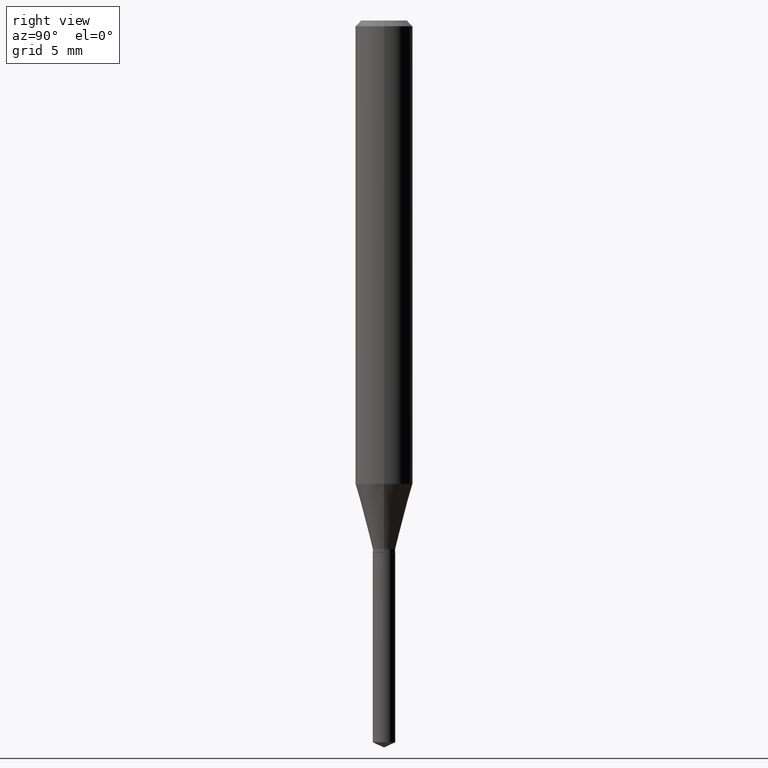
[diagram: clean part render]
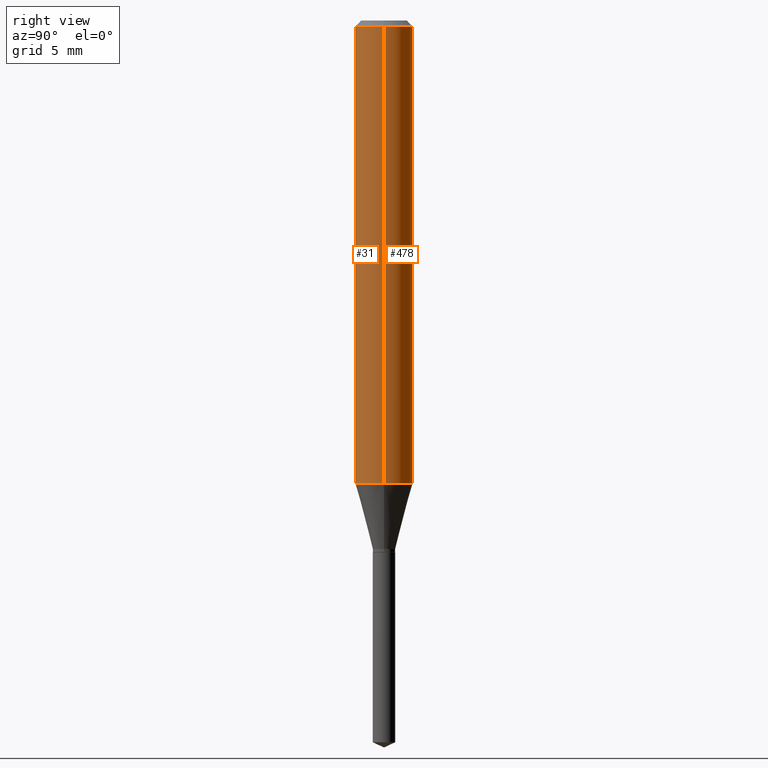
[diagram: same view with one multi-face feature highlighted, each face labeled with its STEP entity id]
A machine part, right view. The highlighted faces form ONE feature: a constant-radius fillet chain: 2 tangent blend faces with common blend radius 1.4999 mm. The faces share edges in the B-rep.
Their STEP definitions:
[1] entity #478 (Cylinder):
#3 = AXIS2_PLACEMENT_3D ( 'NONE', #281, #426, #246 ) ;
#5 = CARTESIAN_POINT ( 'NONE',  ( 0.05905000000000006077, -4.123439461173744764E-16, 2.879382386107503023E-30 ) ) ;
#7 = VERTEX_POINT ( 'NONE', #413 ) ;
#10 = FACE_OUTER_BOUND ( 'NONE', #333, .T. ) ;
#12 = VERTEX_POINT ( 'NONE', #174 ) ;
#20 = VERTEX_POINT ( 'NONE', #340 ) ;
#37 = DIRECTION ( 'NONE',  ( -2.445468806185136877E-29, 3.491481338843145188E-15, 1.000000000000000000 ) ) ;
#43 = VECTOR ( 'NONE', #203, 39.37007874015748143 ) ;
#48 = CIRCLE ( 'NONE', #110, 0.05904999999999999832 ) ;
#69 = DIRECTION ( 'NONE',  ( -2.445468806185136597E-29, 3.491481338843145583E-15, 1.000000000000000000 ) ) ;
#110 = AXIS2_PLACEMENT_3D ( 'NONE', #164, #194, #465 ) ;
#115 = CARTESIAN_POINT ( 'NONE',  ( -0.05904999999999999832, -1.265162320398088606E-15, -0.01181000000000007565 ) ) ;
#121 = VECTOR ( 'NONE', #37, 39.37007874015748143 ) ;
#135 = EDGE_CURVE ( 'NONE', #12, #268, #48, .T. ) ;
#143 = ORIENTED_EDGE ( 'NONE', *, *, #229, .T. ) ;
#164 = CARTESIAN_POINT ( 'NONE',  ( 2.888098660104664642E-31, -4.123439461173780879E-17, -0.01181000000000007565 ) ) ;
#171 = EDGE_CURVE ( 'NONE', #20, #268, #276, .T. ) ;
#174 = CARTESIAN_POINT ( 'NONE',  ( 0.05904999999999999832, -4.535783407291118600E-16, -0.01181000000000007565 ) ) ;
#194 = DIRECTION ( 'NONE',  ( -2.445468806185136597E-29, 3.491481338843145583E-15, 1.000000000000000000 ) ) ;
#202 = ORIENTED_EDGE ( 'NONE', *, *, #171, .T. ) ;
#203 = DIRECTION ( 'NONE',  ( -2.445468806185136877E-29, 3.491481338843145188E-15, 1.000000000000000000 ) ) ;
#229 = EDGE_CURVE ( 'NONE', #7, #20, #408, .T. ) ;
#244 = CYLINDRICAL_SURFACE ( 'NONE', #3, 0.05905000000000006077 ) ;
#246 = DIRECTION ( 'NONE',  ( 1.000000000000000000, -6.982962677686266711E-15, 4.876176775795935793E-29 ) ) ;
#262 = CARTESIAN_POINT ( 'NONE',  ( -0.05905000000000006077, 4.195754854663395916E-16, -2.904631170795524694E-30 ) ) ;
#268 = VERTEX_POINT ( 'NONE', #115 ) ;
#276 = LINE ( 'NONE', #262, #43 ) ;
#281 = CARTESIAN_POINT ( 'NONE',  ( 0.000000000000000000, 0.000000000000000000, 0.000000000000000000 ) ) ;
#299 = LINE ( 'NONE', #5, #121 ) ;
#303 = EDGE_CURVE ( 'NONE', #7, #12, #299, .T. ) ;
#309 = ORIENTED_EDGE ( 'NONE', *, *, #303, .F. ) ;
#333 = EDGE_LOOP ( 'NONE', ( #143, #202, #355, #309 ) ) ;
#340 = CARTESIAN_POINT ( 'NONE',  ( -0.05905000000000011628, -2.908665731650779766E-15, -0.9532461709275201756 ) ) ;
#355 = ORIENTED_EDGE ( 'NONE', *, *, #135, .F. ) ;
#376 = CARTESIAN_POINT ( 'NONE',  ( 2.331133775618675358E-29, -3.328241217117120048E-15, -0.9532461709275201756 ) ) ;
#383 = DIRECTION ( 'NONE',  ( 1.000000000000000000, -6.982962677686266711E-15, 0.000000000000000000 ) ) ;
#401 = AXIS2_PLACEMENT_3D ( 'NONE', #376, #69, #383 ) ;
#408 = CIRCLE ( 'NONE', #401, 0.05905000000000011628 ) ;
#413 = CARTESIAN_POINT ( 'NONE',  ( 0.05905000000000011628, -3.740585163234494179E-15, -0.9532461709275201756 ) ) ;
#426 = DIRECTION ( 'NONE',  ( -2.445468806185136597E-29, 3.491481338843145583E-15, 1.000000000000000000 ) ) ;
#465 = DIRECTION ( 'NONE',  ( 1.000000000000000000, -6.982962677686266711E-15, 0.000000000000000000 ) ) ;
#478 = ADVANCED_FACE ( 'NONE', ( #10 ), #244, .T. ) ;
[2] entity #31 (Cylinder):
#2 = AXIS2_PLACEMENT_3D ( 'NONE', #76, #419, #384 ) ;
#4 = DIRECTION ( 'NONE',  ( 1.000000000000000000, -6.982962677686266711E-15, 0.000000000000000000 ) ) ;
#5 = CARTESIAN_POINT ( 'NONE',  ( 0.05905000000000006077, -4.123439461173744764E-16, 2.879382386107503023E-30 ) ) ;
#7 = VERTEX_POINT ( 'NONE', #413 ) ;
#12 = VERTEX_POINT ( 'NONE', #174 ) ;
#20 = VERTEX_POINT ( 'NONE', #340 ) ;
#31 = ADVANCED_FACE ( 'NONE', ( #331 ), #257, .T. ) ;
#37 = DIRECTION ( 'NONE',  ( -2.445468806185136877E-29, 3.491481338843145188E-15, 1.000000000000000000 ) ) ;
#43 = VECTOR ( 'NONE', #203, 39.37007874015748143 ) ;
#66 = AXIS2_PLACEMENT_3D ( 'NONE', #118, #339, #4 ) ;
#76 = CARTESIAN_POINT ( 'NONE',  ( 2.331133775618675358E-29, -3.328241217117120048E-15, -0.9532461709275201756 ) ) ;
#115 = CARTESIAN_POINT ( 'NONE',  ( -0.05904999999999999832, -1.265162320398088606E-15, -0.01181000000000007565 ) ) ;
#118 = CARTESIAN_POINT ( 'NONE',  ( 2.888098660104664642E-31, -4.123439461173780879E-17, -0.01181000000000007565 ) ) ;
#121 = VECTOR ( 'NONE', #37, 39.37007874015748143 ) ;
#156 = EDGE_CURVE ( 'NONE', #20, #7, #454, .T. ) ;
#158 = CIRCLE ( 'NONE', #66, 0.05904999999999999832 ) ;
#171 = EDGE_CURVE ( 'NONE', #20, #268, #276, .T. ) ;
#174 = CARTESIAN_POINT ( 'NONE',  ( 0.05904999999999999832, -4.535783407291118600E-16, -0.01181000000000007565 ) ) ;
#199 = EDGE_CURVE ( 'NONE', #268, #12, #158, .T. ) ;
#203 = DIRECTION ( 'NONE',  ( -2.445468806185136877E-29, 3.491481338843145188E-15, 1.000000000000000000 ) ) ;
#216 = DIRECTION ( 'NONE',  ( 1.000000000000000000, -6.982962677686266711E-15, 4.876176775795935793E-29 ) ) ;
#219 = CARTESIAN_POINT ( 'NONE',  ( 0.000000000000000000, 0.000000000000000000, 0.000000000000000000 ) ) ;
#224 = AXIS2_PLACEMENT_3D ( 'NONE', #219, #250, #216 ) ;
#239 = ORIENTED_EDGE ( 'NONE', *, *, #156, .T. ) ;
#250 = DIRECTION ( 'NONE',  ( -2.445468806185136597E-29, 3.491481338843145583E-15, 1.000000000000000000 ) ) ;
#257 = CYLINDRICAL_SURFACE ( 'NONE', #224, 0.05905000000000006077 ) ;
#262 = CARTESIAN_POINT ( 'NONE',  ( -0.05905000000000006077, 4.195754854663395916E-16, -2.904631170795524694E-30 ) ) ;
#268 = VERTEX_POINT ( 'NONE', #115 ) ;
#276 = LINE ( 'NONE', #262, #43 ) ;
#299 = LINE ( 'NONE', #5, #121 ) ;
#301 = EDGE_LOOP ( 'NONE', ( #398, #239, #367, #453 ) ) ;
#303 = EDGE_CURVE ( 'NONE', #7, #12, #299, .T. ) ;
#331 = FACE_OUTER_BOUND ( 'NONE', #301, .T. ) ;
#339 = DIRECTION ( 'NONE',  ( -2.445468806185136597E-29, 3.491481338843145583E-15, 1.000000000000000000 ) ) ;
#340 = CARTESIAN_POINT ( 'NONE',  ( -0.05905000000000011628, -2.908665731650779766E-15, -0.9532461709275201756 ) ) ;
#367 = ORIENTED_EDGE ( 'NONE', *, *, #303, .T. ) ;
#384 = DIRECTION ( 'NONE',  ( 1.000000000000000000, -6.982962677686266711E-15, 0.000000000000000000 ) ) ;
#398 = ORIENTED_EDGE ( 'NONE', *, *, #171, .F. ) ;
#413 = CARTESIAN_POINT ( 'NONE',  ( 0.05905000000000011628, -3.740585163234494179E-15, -0.9532461709275201756 ) ) ;
#419 = DIRECTION ( 'NONE',  ( -2.445468806185136597E-29, 3.491481338843145583E-15, 1.000000000000000000 ) ) ;
#453 = ORIENTED_EDGE ( 'NONE', *, *, #199, .F. ) ;
#454 = CIRCLE ( 'NONE', #2, 0.05905000000000011628 ) ;